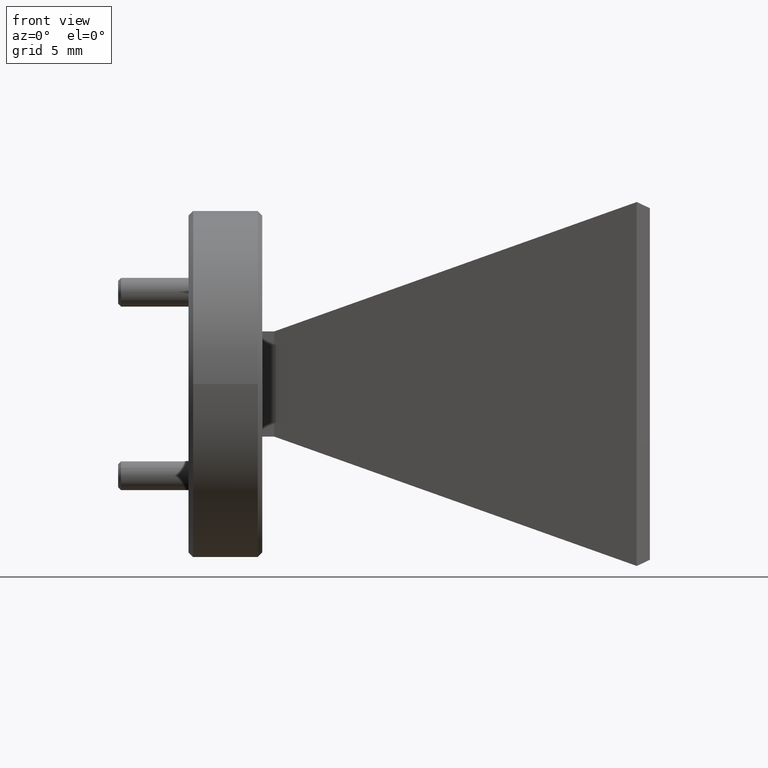
[diagram: clean part render]
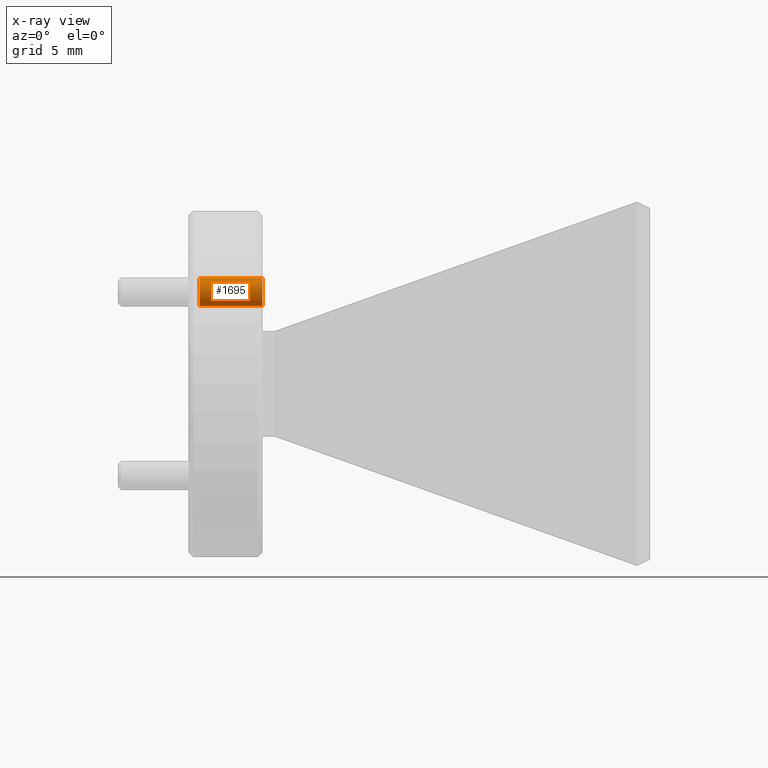
[diagram: x-ray — body ghosted, one internal face saturated and labeled with its STEP entity id]
A machine part, front view, then the same camera in x-ray: the body is ghosted and one INTERNAL B-rep face — a face not visible from any outside direction — is saturated and labeled: STEP entity #1695.
In plain terms, the highlighted cylindrical surface (edge-blend (fillet) strip) has radius 0.781 mm, axis along (-1, -0, -0).
Its self-contained STEP definition (entity closure, byte-faithful):
#324 = CIRCLE ( 'NONE', #2628, 0.03074999999999993711 ) ;
#330 = AXIS2_PLACEMENT_3D ( 'NONE', #657, #481, #1864 ) ;
#395 = DIRECTION ( 'NONE',  ( 1.000000000000000000, 8.537024980200825762E-16, -0.000000000000000000 ) ) ;
#456 = CARTESIAN_POINT ( 'NONE',  ( -2.189423718292400345, -0.02500518769264286831, 0.9850312516108237215 ) ) ;
#468 = ORIENTED_EDGE ( 'NONE', *, *, #1777, .T. ) ;
#481 = DIRECTION ( 'NONE',  ( -1.000000000000000000, -0.000000000000000000, -0.000000000000000000 ) ) ;
#484 = CARTESIAN_POINT ( 'NONE',  ( -2.053673718292400530, -0.02500518769264286137, 0.9542812516108237775 ) ) ;
#542 = VECTOR ( 'NONE', #1363, 39.37007874015748143 ) ;
#657 = CARTESIAN_POINT ( 'NONE',  ( -2.193673718292400210, -0.02500518769264286831, 0.9850312516108237215 ) ) ;
#704 = DIRECTION ( 'NONE',  ( -1.000000000000000000, -0.000000000000000000, -0.000000000000000000 ) ) ;
#742 = VERTEX_POINT ( 'NONE', #1535 ) ;
#870 = CYLINDRICAL_SURFACE ( 'NONE', #330, 0.03074999999999993711 ) ;
#1046 = CARTESIAN_POINT ( 'NONE',  ( -2.053673718292400530, -0.02500518769264286831, 0.9850312516108237215 ) ) ;
#1071 = DIRECTION ( 'NONE',  ( 0.000000000000000000, 1.000000000000000000, 0.000000000000000000 ) ) ;
#1133 = EDGE_LOOP ( 'NONE', ( #468, #2439, #1932, #2164 ) ) ;
#1141 = CIRCLE ( 'NONE', #1981, 0.03074999999999997180 ) ;
#1265 = VERTEX_POINT ( 'NONE', #484 ) ;
#1340 = EDGE_CURVE ( 'NONE', #742, #1497, #324, .T. ) ;
#1363 = DIRECTION ( 'NONE',  ( -1.000000000000000000, -0.000000000000000000, -0.000000000000000000 ) ) ;
#1497 = VERTEX_POINT ( 'NONE', #2368 ) ;
#1499 = EDGE_CURVE ( 'NONE', #1265, #742, #2553, .T. ) ;
#1531 = CARTESIAN_POINT ( 'NONE',  ( -2.193673718292400210, -0.02500518769264286137, 0.9542812516108237775 ) ) ;
#1535 = CARTESIAN_POINT ( 'NONE',  ( -2.189423718292400345, -0.02500518769264286137, 0.9542812516108237775 ) ) ;
#1683 = LINE ( 'NONE', #2477, #1752 ) ;
#1695 = ADVANCED_FACE ( 'NONE', ( #2487 ), #870, .F. ) ;
#1752 = VECTOR ( 'NONE', #2499, 39.37007874015748143 ) ;
#1767 = CARTESIAN_POINT ( 'NONE',  ( -2.053673718292400530, -0.02500518769264286831, 1.015781251610823777 ) ) ;
#1777 = EDGE_CURVE ( 'NONE', #2037, #1265, #1141, .T. ) ;
#1864 = DIRECTION ( 'NONE',  ( 0.000000000000000000, 0.000000000000000000, 1.000000000000000000 ) ) ;
#1932 = ORIENTED_EDGE ( 'NONE', *, *, #1340, .T. ) ;
#1981 = AXIS2_PLACEMENT_3D ( 'NONE', #1046, #395, #1071 ) ;
#2037 = VERTEX_POINT ( 'NONE', #1767 ) ;
#2134 = DIRECTION ( 'NONE',  ( 0.000000000000000000, 0.000000000000000000, 1.000000000000000000 ) ) ;
#2140 = EDGE_CURVE ( 'NONE', #2037, #1497, #1683, .T. ) ;
#2164 = ORIENTED_EDGE ( 'NONE', *, *, #2140, .F. ) ;
#2368 = CARTESIAN_POINT ( 'NONE',  ( -2.189423718292400345, -0.02500518769264286831, 1.015781251610823777 ) ) ;
#2439 = ORIENTED_EDGE ( 'NONE', *, *, #1499, .T. ) ;
#2477 = CARTESIAN_POINT ( 'NONE',  ( -2.193673718292400210, -0.02500518769264286831, 1.015781251610823777 ) ) ;
#2487 = FACE_OUTER_BOUND ( 'NONE', #1133, .T. ) ;
#2499 = DIRECTION ( 'NONE',  ( -1.000000000000000000, -0.000000000000000000, -0.000000000000000000 ) ) ;
#2553 = LINE ( 'NONE', #1531, #542 ) ;
#2628 = AXIS2_PLACEMENT_3D ( 'NONE', #456, #704, #2134 ) ;